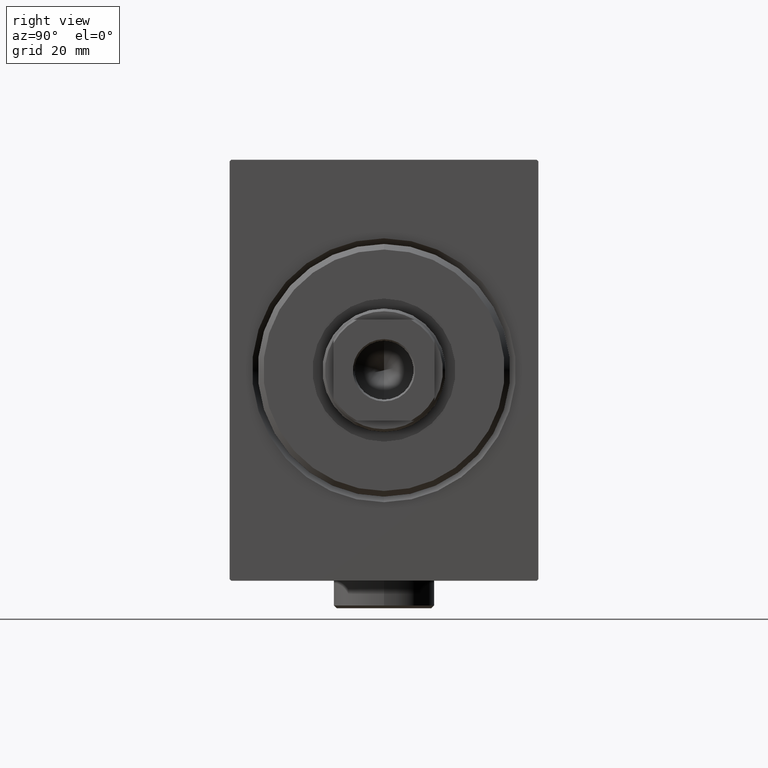
[diagram: clean part render]
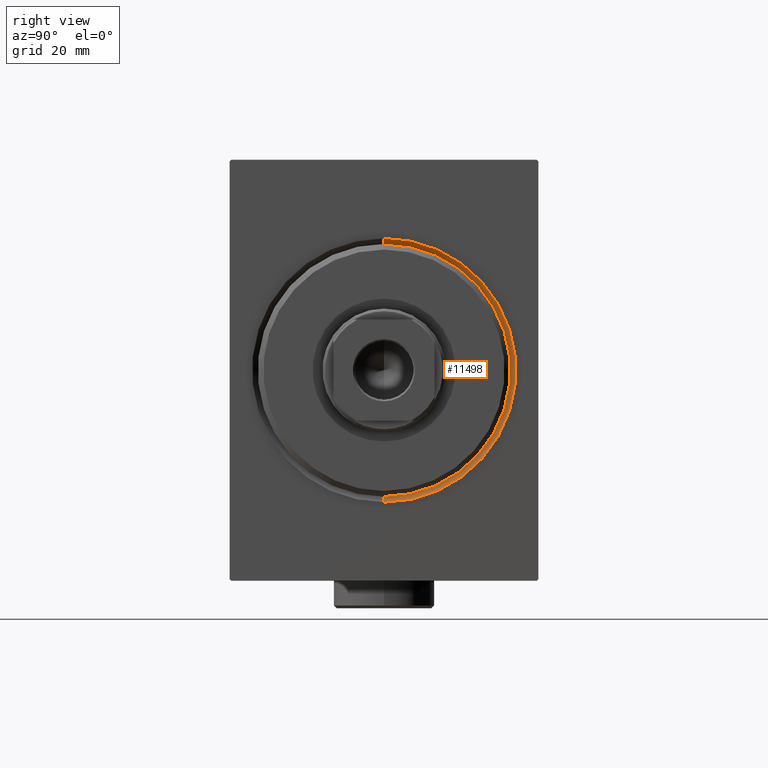
[diagram: same view with one face highlighted and labeled with its STEP entity id]
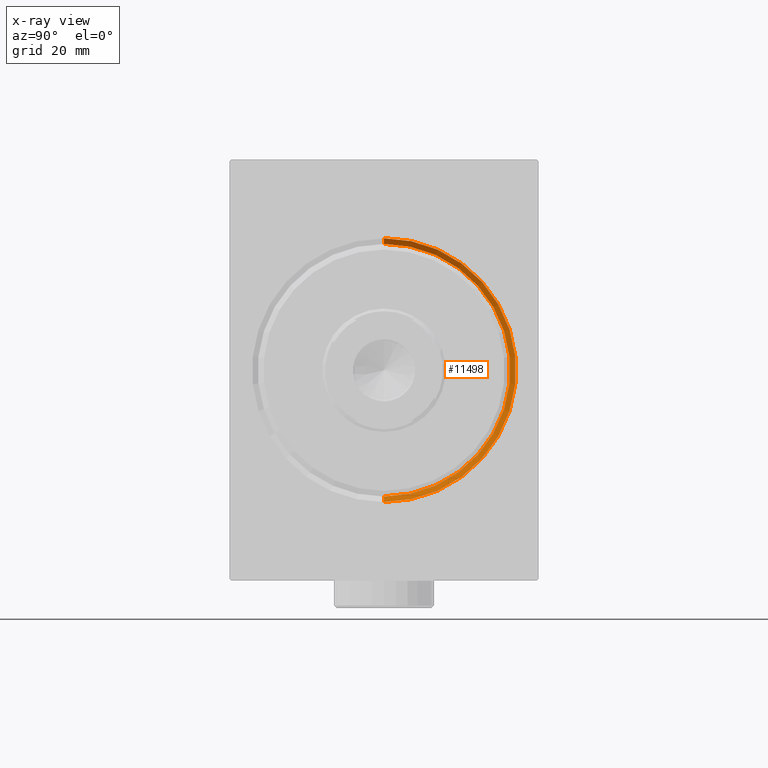
[diagram: x-ray of the same camera — body ghosted, the highlighted face saturated]
A machine part, right view. The second image highlights one B-rep face of the part: STEP entity #11498.
The next image is the same camera in x-ray: the body ghosted, the highlighted face saturated — about 0% of this face is hidden behind the body in this view.
In plain terms, the highlighted conical surface has half-angle 45 deg.
Its self-contained STEP definition (entity closure, byte-faithful):
#209 = LINE ( 'NONE', #41559, #4341 ) ;
#338 = EDGE_CURVE ( 'NONE', #39661, #27077, #209, .T. ) ;
#849 = DIRECTION ( 'NONE',  ( 0.000000000000000000, 0.000000000000000000, 1.000000000000000000 ) ) ;
#3112 = CARTESIAN_POINT ( 'NONE',  ( 1.000000000000000888, 0.000000000000000000, 0.000000000000000000 ) ) ;
#3542 = DIRECTION ( 'NONE',  ( 0.000000000000000000, 0.000000000000000000, -1.000000000000000000 ) ) ;
#4341 = VECTOR ( 'NONE', #7334, 1000.000000000000114 ) ;
#4762 = ORIENTED_EDGE ( 'NONE', *, *, #29164, .F. ) ;
#6665 = DIRECTION ( 'NONE',  ( -1.000000000000000000, 0.000000000000000000, 0.000000000000000000 ) ) ;
#6754 = AXIS2_PLACEMENT_3D ( 'NONE', #17758, #31312, #849 ) ;
#7334 = DIRECTION ( 'NONE',  ( -0.7071067811865474617, 0.000000000000000000, 0.7071067811865474617 ) ) ;
#10092 = CARTESIAN_POINT ( 'NONE',  ( 0.000000000000000000, 0.000000000000000000, 23.50000000000000355 ) ) ;
#11096 = EDGE_CURVE ( 'NONE', #42605, #33575, #42472, .T. ) ;
#11498 = ADVANCED_FACE ( 'NONE', ( #37975 ), #42243, .F. ) ;
#12259 = DIRECTION ( 'NONE',  ( -0.7071067811865474617, 8.659560562354932858E-17, -0.7071067811865474617 ) ) ;
#14742 = CIRCLE ( 'NONE', #15473, 23.50000000000000355 ) ;
#15473 = AXIS2_PLACEMENT_3D ( 'NONE', #17243, #23471, #17019 ) ;
#17019 = DIRECTION ( 'NONE',  ( 0.000000000000000000, 0.000000000000000000, -1.000000000000000000 ) ) ;
#17243 = CARTESIAN_POINT ( 'NONE',  ( 0.000000000000000000, 0.000000000000000000, 0.000000000000000000 ) ) ;
#17758 = CARTESIAN_POINT ( 'NONE',  ( 1.000000000000000888, 0.000000000000000000, 0.000000000000000000 ) ) ;
#19158 = CARTESIAN_POINT ( 'NONE',  ( 0.000000000000000000, 2.877919977996280715E-15, -23.50000000000000355 ) ) ;
#23471 = DIRECTION ( 'NONE',  ( 1.000000000000000000, 0.000000000000000000, 0.000000000000000000 ) ) ;
#25729 = CARTESIAN_POINT ( 'NONE',  ( 1.000000000000000888, 0.000000000000000000, 22.50000000000000355 ) ) ;
#27077 = VERTEX_POINT ( 'NONE', #10092 ) ;
#27171 = ORIENTED_EDGE ( 'NONE', *, *, #33679, .F. ) ;
#29164 = EDGE_CURVE ( 'NONE', #27077, #33575, #14742, .T. ) ;
#29992 = CARTESIAN_POINT ( 'NONE',  ( 1.000000000000000888, 2.755455298081545172E-15, -22.50000000000000355 ) ) ;
#30186 = ORIENTED_EDGE ( 'NONE', *, *, #338, .F. ) ;
#30777 = EDGE_LOOP ( 'NONE', ( #27171, #31065, #4762, #30186 ) ) ;
#31065 = ORIENTED_EDGE ( 'NONE', *, *, #11096, .T. ) ;
#31312 = DIRECTION ( 'NONE',  ( -1.000000000000000000, 0.000000000000000000, 0.000000000000000000 ) ) ;
#31904 = CIRCLE ( 'NONE', #41821, 22.50000000000000355 ) ;
#33575 = VERTEX_POINT ( 'NONE', #19158 ) ;
#33679 = EDGE_CURVE ( 'NONE', #42605, #39661, #31904, .T. ) ;
#35771 = VECTOR ( 'NONE', #12259, 1000.000000000000114 ) ;
#37975 = FACE_OUTER_BOUND ( 'NONE', #30777, .T. ) ;
#38324 = CARTESIAN_POINT ( 'NONE',  ( 1.000000000000000888, 2.755455298081545172E-15, -22.50000000000000355 ) ) ;
#39661 = VERTEX_POINT ( 'NONE', #25729 ) ;
#41559 = CARTESIAN_POINT ( 'NONE',  ( 1.000000000000000888, 0.000000000000000000, 22.50000000000000355 ) ) ;
#41821 = AXIS2_PLACEMENT_3D ( 'NONE', #3112, #6665, #3542 ) ;
#42243 = CONICAL_SURFACE ( 'NONE', #6754, 22.50000000000000355, 0.7853981633974482790 ) ;
#42472 = LINE ( 'NONE', #38324, #35771 ) ;
#42605 = VERTEX_POINT ( 'NONE', #29992 ) ;